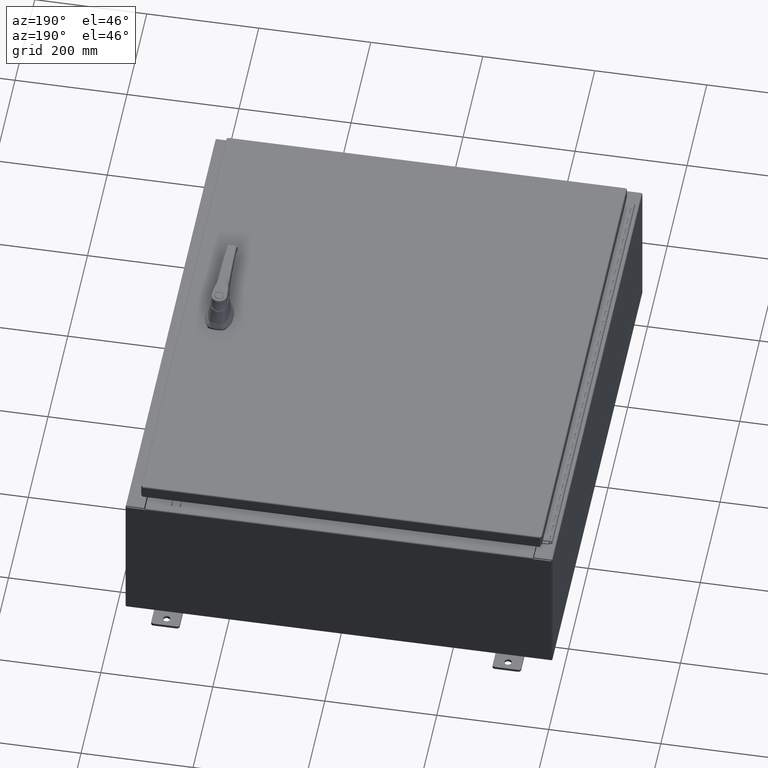
[diagram: clean part render]
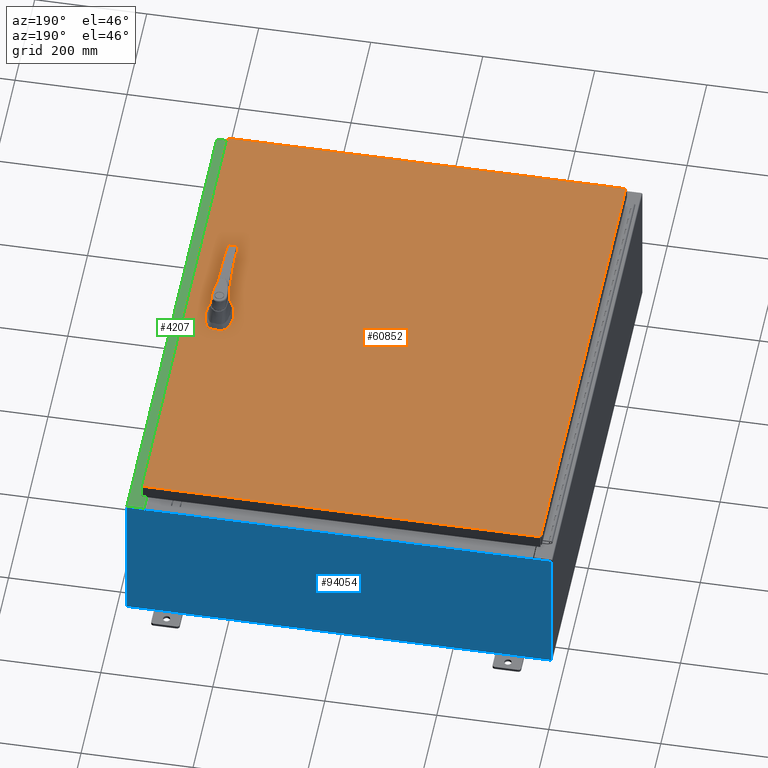
[diagram: same view with three faces highlighted in distinct colors, each labeled with its STEP entity id]
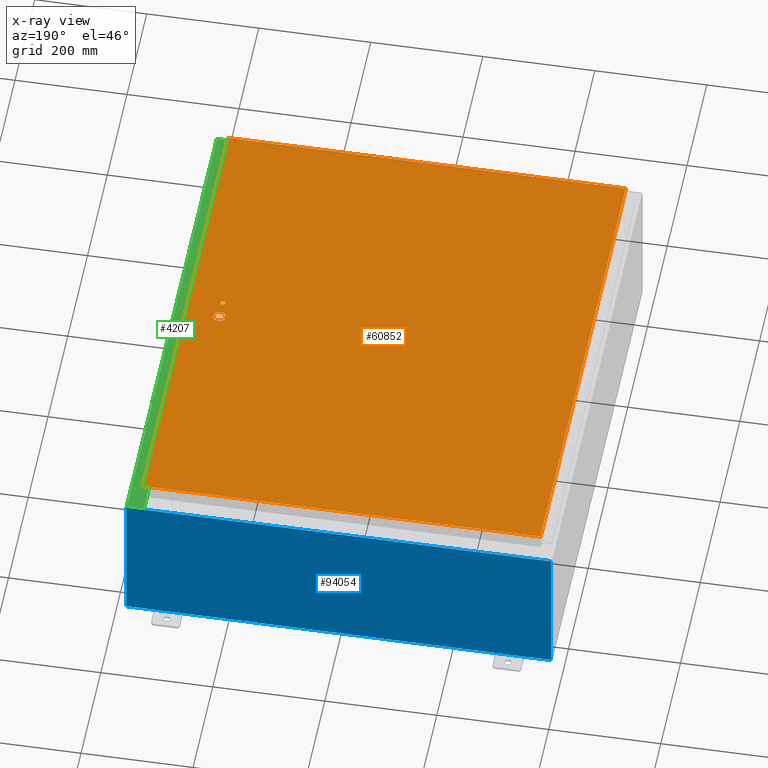
[diagram: x-ray of the same camera — body ghosted, the three highlighted faces saturated]
A machine part, auxiliary view with three faces highlighted in distinct colors.
The next image is the same camera in x-ray (body ghosted, the three faces saturated) — at least one of them is partly hidden behind the body in this view.
Their STEP definitions:

[orange] entity #60852 — the highlighted planar face has unit normal (0, 0, -1).
#1659 = CARTESIAN_POINT ( 'NONE',  ( 11.77822737075630300, 0.4029999999999252000, 0.0000000000000000000 ) ) ;
#1831 = LINE ( 'NONE', #97226, #99730 ) ;
#2115 = CARTESIAN_POINT ( 'NONE',  ( 11.98099999999992000, 6.538620706741751200E-014, 0.0000000000000000000 ) ) ;
#2897 = AXIS2_PLACEMENT_3D ( 'NONE', #7684, #74033, #17208 ) ;
#4254 = ORIENTED_EDGE ( 'NONE', *, *, #13377, .F. ) ;
#4736 = VECTOR ( 'NONE', #116334, 39.37007874015748100 ) ;
#4948 = ORIENTED_EDGE ( 'NONE', *, *, #79596, .F. ) ;
#6911 = VERTEX_POINT ( 'NONE', #33044 ) ;
#7251 = VERTEX_POINT ( 'NONE', #1659 ) ;
#7684 = CARTESIAN_POINT ( 'NONE',  ( 11.57799999999999400, 0.0000000000000000000, 0.0000000000000000000 ) ) ;
#8814 = CIRCLE ( 'NONE', #70711, 0.4499999999999168000 ) ;
#13377 = EDGE_CURVE ( 'NONE', #34958, #20985, #50812, .T. ) ;
#13726 = EDGE_CURVE ( 'NONE', #80247, #92435, #1831, .T. ) ;
#13754 = EDGE_CURVE ( 'NONE', #48320, #77873, #77489, .T. ) ;
#14861 = CARTESIAN_POINT ( 'NONE',  ( 11.77822737075630300, -0.4029999999999252000, 0.0000000000000000000 ) ) ;
#17208 = DIRECTION ( 'NONE',  ( 1.000000000000000000, 0.0000000000000000000, 0.0000000000000000000 ) ) ;
#18678 = VERTEX_POINT ( 'NONE', #86103 ) ;
#18828 = AXIS2_PLACEMENT_3D ( 'NONE', #101879, #44988, #111429 ) ;
#19608 = CARTESIAN_POINT ( 'NONE',  ( 13.99029999999999200, -17.00630000000000000, -2.048885995248197400E-016 ) ) ;
#19678 = EDGE_CURVE ( 'NONE', #69308, #7251, #55681, .T. ) ;
#20245 = DIRECTION ( 'NONE',  ( 1.000000000000000000, 0.0000000000000000000, 0.0000000000000000000 ) ) ;
#20985 = VERTEX_POINT ( 'NONE', #14861 ) ;
#21517 = ORIENTED_EDGE ( 'NONE', *, *, #32371, .F. ) ;
#22620 = VECTOR ( 'NONE', #20245, 39.37007874015748100 ) ;
#24495 = CIRCLE ( 'NONE', #118045, 0.1715000000000011500 ) ;
#26691 = VECTOR ( 'NONE', #58912, 39.37007874015748100 ) ;
#26692 = ORIENTED_EDGE ( 'NONE', *, *, #57905, .T. ) ;
#27304 = CARTESIAN_POINT ( 'NONE',  ( 11.40649999999999200, -1.338000000000000100, 0.0000000000000000000 ) ) ;
#28423 = CARTESIAN_POINT ( 'NONE',  ( 11.57799999999999400, 0.0000000000000000000, 0.0000000000000000000 ) ) ;
#28517 = DIRECTION ( 'NONE',  ( 0.0000000000000000000, -1.000000000000000000, 0.0000000000000000000 ) ) ;
#28536 = LINE ( 'NONE', #72655, #70058 ) ;
#28896 = EDGE_LOOP ( 'NONE', ( #96747, #83966 ) ) ;
#29458 = CARTESIAN_POINT ( 'NONE',  ( 11.74949999999999400, -1.338000000000000100, 0.0000000000000000000 ) ) ;
#29605 = ORIENTED_EDGE ( 'NONE', *, *, #13726, .T. ) ;
#31665 = VECTOR ( 'NONE', #47254, 39.37007874015748100 ) ;
#32371 = EDGE_CURVE ( 'NONE', #48464, #6911, #91684, .T. ) ;
#33044 = CARTESIAN_POINT ( 'NONE',  ( 11.17500000000006600, 0.2002273707563079800, 0.0000000000000000000 ) ) ;
#34209 = DIRECTION ( 'NONE',  ( -0.0000000000000000000, 0.0000000000000000000, 1.000000000000000000 ) ) ;
#34958 = VERTEX_POINT ( 'NONE', #50941 ) ;
#35425 = DIRECTION ( 'NONE',  ( -0.0000000000000000000, 0.0000000000000000000, 1.000000000000000000 ) ) ;
#37084 = EDGE_CURVE ( 'NONE', #58471, #34958, #120786, .T. ) ;
#37932 = DIRECTION ( 'NONE',  ( 1.000000000000000000, 0.0000000000000000000, 0.0000000000000000000 ) ) ;
#40339 = DIRECTION ( 'NONE',  ( 0.0000000000000000000, -1.000000000000000000, 0.0000000000000000000 ) ) ;
#41719 = VECTOR ( 'NONE', #28517, 39.37007874015748100 ) ;
#42137 = ORIENTED_EDGE ( 'NONE', *, *, #70620, .T. ) ;
#43017 = CARTESIAN_POINT ( 'NONE',  ( 11.17500000000006600, -0.2002273707563079800, 0.0000000000000000000 ) ) ;
#43195 = EDGE_LOOP ( 'NONE', ( #26692, #105018, #83773, #29605 ) ) ;
#43601 = DIRECTION ( 'NONE',  ( -0.0000000000000000000, 0.0000000000000000000, 1.000000000000000000 ) ) ;
#43673 = PLANE ( 'NONE',  #61506 ) ;
#44988 = DIRECTION ( 'NONE',  ( -0.0000000000000000000, 0.0000000000000000000, 1.000000000000000000 ) ) ;
#47254 = DIRECTION ( 'NONE',  ( -1.000000000000000000, 0.0000000000000000000, 0.0000000000000000000 ) ) ;
#48065 = ORIENTED_EDGE ( 'NONE', *, *, #100450, .F. ) ;
#48310 = CARTESIAN_POINT ( 'NONE',  ( 13.99029999999999200, 17.00630000000000300, -1.297627796990525000E-015 ) ) ;
#48320 = VERTEX_POINT ( 'NONE', #19608 ) ;
#48464 = VERTEX_POINT ( 'NONE', #80051 ) ;
#48937 = LINE ( 'NONE', #2115, #26691 ) ;
#49909 = CARTESIAN_POINT ( 'NONE',  ( 13.99029999999999200, -17.00630000000000000, -2.048885995248197400E-016 ) ) ;
#49918 = EDGE_CURVE ( 'NONE', #77873, #80247, #81159, .T. ) ;
#50812 = LINE ( 'NONE', #57998, #22620 ) ;
#50941 = CARTESIAN_POINT ( 'NONE',  ( 11.37777262924368300, -0.4029999999999252000, 0.0000000000000000000 ) ) ;
#53237 = DIRECTION ( 'NONE',  ( -1.000000000000000000, 0.0000000000000000000, -0.0000000000000000000 ) ) ;
#55681 = CIRCLE ( 'NONE', #18828, 0.4499999999999168000 ) ;
#57905 = EDGE_CURVE ( 'NONE', #92435, #48320, #28536, .T. ) ;
#57998 = CARTESIAN_POINT ( 'NONE',  ( 0.0000000000000000000, -0.4029999999999252000, 0.0000000000000000000 ) ) ;
#58471 = VERTEX_POINT ( 'NONE', #43017 ) ;
#58912 = DIRECTION ( 'NONE',  ( 5.457491617345625800E-015, -1.000000000000000000, 0.0000000000000000000 ) ) ;
#60852 = ADVANCED_FACE ( 'NONE', ( #78516, #103792, #106774 ), #43673, .F. ) ;
#61506 = AXIS2_PLACEMENT_3D ( 'NONE', #71908, #110097, #53237 ) ;
#64657 = CARTESIAN_POINT ( 'NONE',  ( 11.98099999999992000, 0.2002273707563075900, 0.0000000000000000000 ) ) ;
#65431 = ORIENTED_EDGE ( 'NONE', *, *, #19678, .F. ) ;
#67046 = LINE ( 'NONE', #75781, #41719 ) ;
#69308 = VERTEX_POINT ( 'NONE', #64657 ) ;
#70058 = VECTOR ( 'NONE', #82159, 39.37007874015748100 ) ;
#70620 = EDGE_CURVE ( 'NONE', #69308, #18678, #48937, .T. ) ;
#70711 = AXIS2_PLACEMENT_3D ( 'NONE', #92299, #35425, #101839 ) ;
#71572 = EDGE_LOOP ( 'NONE', ( #42137, #48065, #4254, #116717, #4948, #21517, #111625, #65431 ) ) ;
#71908 = CARTESIAN_POINT ( 'NONE',  ( 0.0000000000000000000, 0.0000000000000000000, 0.0000000000000000000 ) ) ;
#72655 = CARTESIAN_POINT ( 'NONE',  ( -13.99030000000000700, -17.00630000000000000, -2.048885995248197400E-016 ) ) ;
#74033 = DIRECTION ( 'NONE',  ( -0.0000000000000000000, 0.0000000000000000000, 1.000000000000000000 ) ) ;
#75781 = CARTESIAN_POINT ( 'NONE',  ( 11.17500000000006600, 0.0000000000000000000, 0.0000000000000000000 ) ) ;
#75884 = EDGE_CURVE ( 'NONE', #83416, #97343, #24495, .T. ) ;
#77489 = LINE ( 'NONE', #49909, #4736 ) ;
#77873 = VERTEX_POINT ( 'NONE', #48310 ) ;
#78516 = FACE_BOUND ( 'NONE', #28896, .T. ) ;
#79596 = EDGE_CURVE ( 'NONE', #6911, #58471, #67046, .T. ) ;
#80051 = CARTESIAN_POINT ( 'NONE',  ( 11.37777262924368300, 0.4029999999999252000, 0.0000000000000000000 ) ) ;
#80247 = VERTEX_POINT ( 'NONE', #95986 ) ;
#81159 = LINE ( 'NONE', #83829, #84165 ) ;
#82159 = DIRECTION ( 'NONE',  ( 1.000000000000000000, -0.0000000000000000000, -0.0000000000000000000 ) ) ;
#83416 = VERTEX_POINT ( 'NONE', #27304 ) ;
#83773 = ORIENTED_EDGE ( 'NONE', *, *, #49918, .T. ) ;
#83829 = CARTESIAN_POINT ( 'NONE',  ( 13.99029999999999200, 17.00630000000000300, -1.297627796990525000E-015 ) ) ;
#83966 = ORIENTED_EDGE ( 'NONE', *, *, #75884, .F. ) ;
#84165 = VECTOR ( 'NONE', #93412, 39.37007874015748100 ) ;
#86103 = CARTESIAN_POINT ( 'NONE',  ( 11.98099999999992200, -0.2002273707563079800, 0.0000000000000000000 ) ) ;
#87640 = EDGE_CURVE ( 'NONE', #7251, #48464, #101427, .T. ) ;
#91081 = CARTESIAN_POINT ( 'NONE',  ( 11.57799999999999400, -1.338000000000000100, 0.0000000000000000000 ) ) ;
#91684 = CIRCLE ( 'NONE', #2897, 0.4499999999999168000 ) ;
#92299 = CARTESIAN_POINT ( 'NONE',  ( 11.57799999999999400, 0.0000000000000000000, 0.0000000000000000000 ) ) ;
#92435 = VERTEX_POINT ( 'NONE', #103695 ) ;
#93412 = DIRECTION ( 'NONE',  ( -1.000000000000000000, -0.0000000000000000000, -0.0000000000000000000 ) ) ;
#94402 = AXIS2_PLACEMENT_3D ( 'NONE', #28423, #94808, #37932 ) ;
#94808 = DIRECTION ( 'NONE',  ( -0.0000000000000000000, 0.0000000000000000000, 1.000000000000000000 ) ) ;
#95986 = CARTESIAN_POINT ( 'NONE',  ( -13.99030000000000700, 17.00630000000000000, -2.048885995248197400E-016 ) ) ;
#96747 = ORIENTED_EDGE ( 'NONE', *, *, #112225, .F. ) ;
#97226 = CARTESIAN_POINT ( 'NONE',  ( -13.99030000000000700, 17.00630000000000000, -2.048885995248197400E-016 ) ) ;
#97343 = VERTEX_POINT ( 'NONE', #29458 ) ;
#99730 = VECTOR ( 'NONE', #40339, 39.37007874015748100 ) ;
#100450 = EDGE_CURVE ( 'NONE', #20985, #18678, #8814, .T. ) ;
#100489 = CARTESIAN_POINT ( 'NONE',  ( 11.57799999999999400, -1.338000000000000100, 0.0000000000000000000 ) ) ;
#100643 = DIRECTION ( 'NONE',  ( 1.000000000000000000, 0.0000000000000000000, 0.0000000000000000000 ) ) ;
#101427 = LINE ( 'NONE', #104142, #31665 ) ;
#101839 = DIRECTION ( 'NONE',  ( 1.000000000000000000, 0.0000000000000000000, 0.0000000000000000000 ) ) ;
#101879 = CARTESIAN_POINT ( 'NONE',  ( 11.57799999999999400, 0.0000000000000000000, 0.0000000000000000000 ) ) ;
#102338 = AXIS2_PLACEMENT_3D ( 'NONE', #91081, #34209, #100643 ) ;
#103695 = CARTESIAN_POINT ( 'NONE',  ( -13.99030000000000700, -17.00630000000000000, -2.048885995248197400E-016 ) ) ;
#103792 = FACE_OUTER_BOUND ( 'NONE', #43195, .T. ) ;
#104142 = CARTESIAN_POINT ( 'NONE',  ( 0.0000000000000000000, 0.4029999999999252000, 0.0000000000000000000 ) ) ;
#105018 = ORIENTED_EDGE ( 'NONE', *, *, #13754, .T. ) ;
#106774 = FACE_BOUND ( 'NONE', #71572, .T. ) ;
#110039 = DIRECTION ( 'NONE',  ( 1.000000000000000000, 0.0000000000000000000, 0.0000000000000000000 ) ) ;
#110097 = DIRECTION ( 'NONE',  ( 0.0000000000000000000, 0.0000000000000000000, -1.000000000000000000 ) ) ;
#111429 = DIRECTION ( 'NONE',  ( 1.000000000000000000, 0.0000000000000000000, 0.0000000000000000000 ) ) ;
#111625 = ORIENTED_EDGE ( 'NONE', *, *, #87640, .F. ) ;
#112225 = EDGE_CURVE ( 'NONE', #97343, #83416, #114275, .T. ) ;
#114275 = CIRCLE ( 'NONE', #102338, 0.1715000000000011500 ) ;
#116334 = DIRECTION ( 'NONE',  ( 0.0000000000000000000, 1.000000000000000000, 0.0000000000000000000 ) ) ;
#116717 = ORIENTED_EDGE ( 'NONE', *, *, #37084, .F. ) ;
#118045 = AXIS2_PLACEMENT_3D ( 'NONE', #100489, #43601, #110039 ) ;
#120786 = CIRCLE ( 'NONE', #94402, 0.4499999999999168000 ) ;

[blue] entity #94054 — the highlighted planar face has unit normal (0, -1, 0).
#1230 = LINE ( 'NONE', #83989, #23418 ) ;
#4386 = AXIS2_PLACEMENT_3D ( 'NONE', #56059, #122479, #65630 ) ;
#6017 = VERTEX_POINT ( 'NONE', #39039 ) ;
#6091 = ORIENTED_EDGE ( 'NONE', *, *, #99513, .T. ) ;
#7769 = EDGE_CURVE ( 'NONE', #6017, #55393, #1230, .T. ) ;
#8002 = CARTESIAN_POINT ( 'NONE',  ( 14.92529999999999800, 0.0000000000000000000, 4.925300000000000000 ) ) ;
#10573 = CARTESIAN_POINT ( 'NONE',  ( 0.0000000000000000000, 0.0000000000000000000, 0.0000000000000000000 ) ) ;
#10584 = VERTEX_POINT ( 'NONE', #107399 ) ;
#12391 = EDGE_CURVE ( 'NONE', #14372, #118832, #65841, .T. ) ;
#13902 = LINE ( 'NONE', #94990, #67390 ) ;
#14372 = VERTEX_POINT ( 'NONE', #57704 ) ;
#15589 = DIRECTION ( 'NONE',  ( -0.0000000000000000000, 1.000000000000000000, -0.0000000000000000000 ) ) ;
#18573 = DIRECTION ( 'NONE',  ( 1.000000000000000000, 0.0000000000000000000, 0.0000000000000000000 ) ) ;
#18867 = VECTOR ( 'NONE', #60109, 39.37007874015748100 ) ;
#23398 = VERTEX_POINT ( 'NONE', #42910 ) ;
#23418 = VECTOR ( 'NONE', #27200, 39.37007874015748100 ) ;
#23959 = VERTEX_POINT ( 'NONE', #77302 ) ;
#24947 = VERTEX_POINT ( 'NONE', #64463 ) ;
#27200 = DIRECTION ( 'NONE',  ( -4.340572780400004900E-014, 0.0000000000000000000, -1.000000000000000000 ) ) ;
#27208 = VERTEX_POINT ( 'NONE', #111118 ) ;
#27393 = EDGE_CURVE ( 'NONE', #6017, #56621, #65009, .T. ) ;
#27506 = CARTESIAN_POINT ( 'NONE',  ( 13.63719999999999800, 0.0000000000000000000, 0.0000000000000000000 ) ) ;
#28209 = VECTOR ( 'NONE', #120796, 39.37007874015748100 ) ;
#29642 = PLANE ( 'NONE',  #98146 ) ;
#33008 = DIRECTION ( 'NONE',  ( 1.000000000000000000, 0.0000000000000000000, 0.0000000000000000000 ) ) ;
#34091 = LINE ( 'NONE', #54362, #28209 ) ;
#37582 = VECTOR ( 'NONE', #99861, 39.37007874015748100 ) ;
#37830 = EDGE_CURVE ( 'NONE', #56621, #121084, #104342, .T. ) ;
#37916 = EDGE_CURVE ( 'NONE', #24947, #23398, #98369, .T. ) ;
#37946 = ORIENTED_EDGE ( 'NONE', *, *, #64995, .F. ) ;
#39039 = CARTESIAN_POINT ( 'NONE',  ( 13.67455000000000000, 0.0000000000000000000, 4.925300000000000000 ) ) ;
#39145 = DIRECTION ( 'NONE',  ( 0.0000000000000000000, -1.000000000000000000, 0.0000000000000000000 ) ) ;
#42459 = VECTOR ( 'NONE', #122548, 39.37007874015748100 ) ;
#42910 = CARTESIAN_POINT ( 'NONE',  ( -13.63720000000000000, -0.0000000000000000000, 4.874950000000000100 ) ) ;
#44148 = ORIENTED_EDGE ( 'NONE', *, *, #12391, .T. ) ;
#45453 = LINE ( 'NONE', #27506, #42459 ) ;
#46599 = VECTOR ( 'NONE', #33008, 39.37007874015748100 ) ;
#48604 = ORIENTED_EDGE ( 'NONE', *, *, #73967, .T. ) ;
#50629 = EDGE_CURVE ( 'NONE', #27208, #81248, #45453, .T. ) ;
#54362 = CARTESIAN_POINT ( 'NONE',  ( -13.63720000000000400, -7.171100983368691200E-016, 4.912300000000000100 ) ) ;
#55393 = VERTEX_POINT ( 'NONE', #86974 ) ;
#56059 = CARTESIAN_POINT ( 'NONE',  ( -13.65587500000000000, 0.0000000000000000000, 4.874950000000000100 ) ) ;
#56501 = ORIENTED_EDGE ( 'NONE', *, *, #88465, .F. ) ;
#56621 = VERTEX_POINT ( 'NONE', #107833 ) ;
#56844 = VECTOR ( 'NONE', #64010, 39.37007874015748100 ) ;
#57704 = CARTESIAN_POINT ( 'NONE',  ( -14.92530000000000200, 0.0000000000000000000, -4.925300000000000000 ) ) ;
#60109 = DIRECTION ( 'NONE',  ( -1.000000000000000000, -0.0000000000000000000, -0.0000000000000000000 ) ) ;
#62006 = VECTOR ( 'NONE', #18573, 39.37007874015748100 ) ;
#62126 = CARTESIAN_POINT ( 'NONE',  ( -14.92530000000000200, 0.0000000000000000000, 4.925300000000000000 ) ) ;
#62538 = EDGE_LOOP ( 'NONE', ( #37946, #95619, #98154, #6091, #63596, #56501, #73625, #115953, #71227, #48604, #44148, #98832 ) ) ;
#63596 = ORIENTED_EDGE ( 'NONE', *, *, #50629, .F. ) ;
#64010 = DIRECTION ( 'NONE',  ( 0.0000000000000000000, 0.0000000000000000000, -1.000000000000000000 ) ) ;
#64463 = CARTESIAN_POINT ( 'NONE',  ( -13.63720000000000000, -7.171100983368691200E-016, 4.912300000000000100 ) ) ;
#64995 = EDGE_CURVE ( 'NONE', #23959, #10584, #13902, .T. ) ;
#65009 = LINE ( 'NONE', #113189, #62006 ) ;
#65630 = DIRECTION ( 'NONE',  ( 0.0000000000000000000, 0.0000000000000000000, -1.000000000000000000 ) ) ;
#65841 = LINE ( 'NONE', #62126, #37582 ) ;
#66080 = DIRECTION ( 'NONE',  ( 0.0000000000000000000, 0.0000000000000000000, -1.000000000000000000 ) ) ;
#66780 = DIRECTION ( 'NONE',  ( 0.0000000000000000000, 0.0000000000000000000, 1.000000000000000000 ) ) ;
#67390 = VECTOR ( 'NONE', #66780, 39.37007874015748100 ) ;
#70142 = VECTOR ( 'NONE', #66080, 39.37007874015748100 ) ;
#71227 = ORIENTED_EDGE ( 'NONE', *, *, #37830, .T. ) ;
#72425 = CARTESIAN_POINT ( 'NONE',  ( 13.65587499999999800, 0.0000000000000000000, 4.874950000000000100 ) ) ;
#73625 = ORIENTED_EDGE ( 'NONE', *, *, #7769, .F. ) ;
#73967 = EDGE_CURVE ( 'NONE', #121084, #14372, #119817, .T. ) ;
#76614 = EDGE_CURVE ( 'NONE', #118832, #10584, #119414, .T. ) ;
#77302 = CARTESIAN_POINT ( 'NONE',  ( -13.67455000000000000, 0.0000000000000000000, 4.874950000000000100 ) ) ;
#81248 = VERTEX_POINT ( 'NONE', #119408 ) ;
#81926 = DIRECTION ( 'NONE',  ( 0.0000000000000000000, 0.0000000000000000000, -1.000000000000000000 ) ) ;
#82348 = CARTESIAN_POINT ( 'NONE',  ( -14.92530000000000200, 0.0000000000000000000, 4.925300000000000000 ) ) ;
#83701 = CARTESIAN_POINT ( 'NONE',  ( -14.92530000000000200, 0.0000000000000000000, 4.925300000000000000 ) ) ;
#83989 = CARTESIAN_POINT ( 'NONE',  ( 13.67454999999978500, -0.0000000000000000000, -5.935537951421795000E-013 ) ) ;
#86974 = CARTESIAN_POINT ( 'NONE',  ( 13.67454999999999800, 0.0000000000000000000, 4.874950000000000100 ) ) ;
#88465 = EDGE_CURVE ( 'NONE', #55393, #27208, #103015, .T. ) ;
#91702 = CIRCLE ( 'NONE', #4386, 0.01867499999999949400 ) ;
#94054 = ADVANCED_FACE ( 'NONE', ( #111123 ), #29642, .F. ) ;
#94783 = EDGE_CURVE ( 'NONE', #23398, #23959, #91702, .T. ) ;
#94990 = CARTESIAN_POINT ( 'NONE',  ( -13.67455000000000000, -0.0000000000000000000, 0.0000000000000000000 ) ) ;
#95619 = ORIENTED_EDGE ( 'NONE', *, *, #94783, .F. ) ;
#97100 = AXIS2_PLACEMENT_3D ( 'NONE', #72425, #15589, #81926 ) ;
#98146 = AXIS2_PLACEMENT_3D ( 'NONE', #10573, #39145, #105580 ) ;
#98154 = ORIENTED_EDGE ( 'NONE', *, *, #37916, .F. ) ;
#98369 = LINE ( 'NONE', #113389, #70142 ) ;
#98832 = ORIENTED_EDGE ( 'NONE', *, *, #76614, .T. ) ;
#99513 = EDGE_CURVE ( 'NONE', #24947, #81248, #34091, .T. ) ;
#99861 = DIRECTION ( 'NONE',  ( -0.0000000000000000000, -0.0000000000000000000, 1.000000000000000000 ) ) ;
#101415 = CARTESIAN_POINT ( 'NONE',  ( 14.92529999999999800, 0.0000000000000000000, -4.925300000000000000 ) ) ;
#103015 = CIRCLE ( 'NONE', #97100, 0.01867499999999949400 ) ;
#104342 = LINE ( 'NONE', #8002, #56844 ) ;
#105580 = DIRECTION ( 'NONE',  ( 0.0000000000000000000, -0.0000000000000000000, -1.000000000000000000 ) ) ;
#107399 = CARTESIAN_POINT ( 'NONE',  ( -13.67455000000000000, 0.0000000000000000000, 4.925300000000000000 ) ) ;
#107833 = CARTESIAN_POINT ( 'NONE',  ( 14.92529999999999800, 0.0000000000000000000, 4.925300000000000000 ) ) ;
#111118 = CARTESIAN_POINT ( 'NONE',  ( 13.63719999999999800, 0.0000000000000000000, 4.874950000000000100 ) ) ;
#111123 = FACE_OUTER_BOUND ( 'NONE', #62538, .T. ) ;
#113189 = CARTESIAN_POINT ( 'NONE',  ( -14.92530000000000200, 0.0000000000000000000, 4.925300000000000000 ) ) ;
#113389 = CARTESIAN_POINT ( 'NONE',  ( -13.63720000000000000, -0.0000000000000000000, 0.0000000000000000000 ) ) ;
#115953 = ORIENTED_EDGE ( 'NONE', *, *, #27393, .T. ) ;
#116959 = CARTESIAN_POINT ( 'NONE',  ( -14.92530000000000200, 0.0000000000000000000, -4.925300000000000000 ) ) ;
#118832 = VERTEX_POINT ( 'NONE', #83701 ) ;
#119408 = CARTESIAN_POINT ( 'NONE',  ( 13.63719999999999800, 0.0000000000000000000, 4.912300000000000100 ) ) ;
#119414 = LINE ( 'NONE', #82348, #46599 ) ;
#119817 = LINE ( 'NONE', #116959, #18867 ) ;
#120796 = DIRECTION ( 'NONE',  ( 1.000000000000000000, 0.0000000000000000000, 0.0000000000000000000 ) ) ;
#121084 = VERTEX_POINT ( 'NONE', #101415 ) ;
#122479 = DIRECTION ( 'NONE',  ( -0.0000000000000000000, 1.000000000000000000, -0.0000000000000000000 ) ) ;
#122548 = DIRECTION ( 'NONE',  ( 0.0000000000000000000, 0.0000000000000000000, 1.000000000000000000 ) ) ;

[green] entity #4207 — the highlighted planar face has unit normal (-0, 0, -1).
#984 = DIRECTION ( 'NONE',  ( 5.349571789159788500E-015, 0.0000000000000000000, 1.000000000000000000 ) ) ;
#1303 = DIRECTION ( 'NONE',  ( 1.000000000000000000, 0.0000000000000000000, 0.0000000000000000000 ) ) ;
#4207 = ADVANCED_FACE ( 'NONE', ( #114601 ), #53063, .F. ) ;
#4522 = DIRECTION ( 'NONE',  ( 1.000000000000000000, 0.0000000000000000000, 0.0000000000000000000 ) ) ;
#4685 = EDGE_CURVE ( 'NONE', #99463, #80638, #81764, .T. ) ;
#5809 = DIRECTION ( 'NONE',  ( -5.349571789159788500E-015, 0.0000000000000000000, -1.000000000000000000 ) ) ;
#7409 = LINE ( 'NONE', #58104, #102404 ) ;
#7970 = CARTESIAN_POINT ( 'NONE',  ( 13.71270000000003700, 16.59375000000000000, 9.925300000000008900 ) ) ;
#8857 = VECTOR ( 'NONE', #30951, 39.37007874015748100 ) ;
#9521 = CARTESIAN_POINT ( 'NONE',  ( 13.69970000000003400, -16.63110000000000000, 9.925300000000008900 ) ) ;
#9566 = LINE ( 'NONE', #109719, #57061 ) ;
#10737 = VECTOR ( 'NONE', #48658, 39.37007874015748100 ) ;
#10752 = VERTEX_POINT ( 'NONE', #51720 ) ;
#11875 = CARTESIAN_POINT ( 'NONE',  ( 13.69970000000003400, -5.858168245728892200E-030, 9.925300000000008900 ) ) ;
#13569 = ORIENTED_EDGE ( 'NONE', *, *, #94363, .F. ) ;
#13632 = EDGE_CURVE ( 'NONE', #89438, #98015, #64166, .T. ) ;
#14315 = LINE ( 'NONE', #83922, #61860 ) ;
#15569 = ORIENTED_EDGE ( 'NONE', *, *, #13632, .F. ) ;
#15657 = DIRECTION ( 'NONE',  ( -4.276128853718621600E-031, -1.000000000000000000, 2.287545828266532300E-045 ) ) ;
#17552 = LINE ( 'NONE', #108002, #90249 ) ;
#20908 = LINE ( 'NONE', #110263, #118865 ) ;
#20944 = ORIENTED_EDGE ( 'NONE', *, *, #107216, .T. ) ;
#21226 = DIRECTION ( 'NONE',  ( 5.349571789159788500E-015, 0.0000000000000000000, 1.000000000000000000 ) ) ;
#21433 = CARTESIAN_POINT ( 'NONE',  ( 14.91230000000003400, -17.92530000000000000, 9.925300000000001800 ) ) ;
#25164 = ORIENTED_EDGE ( 'NONE', *, *, #70943, .T. ) ;
#25198 = VERTEX_POINT ( 'NONE', #92097 ) ;
#27451 = CARTESIAN_POINT ( 'NONE',  ( 13.75005000000003500, -16.59375000000000000, 9.925300000000008900 ) ) ;
#30951 = DIRECTION ( 'NONE',  ( -0.0000000000000000000, -1.000000000000000000, -0.0000000000000000000 ) ) ;
#32113 = ORIENTED_EDGE ( 'NONE', *, *, #70591, .F. ) ;
#34431 = EDGE_CURVE ( 'NONE', #42179, #99463, #73582, .T. ) ;
#36593 = DIRECTION ( 'NONE',  ( -1.000000000000000000, 0.0000000000000000000, 0.0000000000000000000 ) ) ;
#37032 = LINE ( 'NONE', #21433, #8857 ) ;
#42179 = VERTEX_POINT ( 'NONE', #58948 ) ;
#45752 = EDGE_LOOP ( 'NONE', ( #109473, #51184, #53144, #50998, #20944, #25164, #72532, #100627, #32113, #13569, #15569, #90887 ) ) ;
#46182 = EDGE_CURVE ( 'NONE', #117178, #80446, #20908, .T. ) ;
#47004 = CARTESIAN_POINT ( 'NONE',  ( 13.69970000000003400, 17.92530000000000000, 9.925300000000008900 ) ) ;
#48610 = LINE ( 'NONE', #89544, #70847 ) ;
#48658 = DIRECTION ( 'NONE',  ( -1.000000000000000000, 0.0000000000000000000, 0.0000000000000000000 ) ) ;
#50998 = ORIENTED_EDGE ( 'NONE', *, *, #70975, .F. ) ;
#51184 = ORIENTED_EDGE ( 'NONE', *, *, #46182, .T. ) ;
#51720 = CARTESIAN_POINT ( 'NONE',  ( 13.75005000000003500, -16.63110000000000000, 9.925300000000008900 ) ) ;
#53063 = PLANE ( 'NONE',  #100563 ) ;
#53144 = ORIENTED_EDGE ( 'NONE', *, *, #115167, .T. ) ;
#55818 = AXIS2_PLACEMENT_3D ( 'NONE', #78008, #21226, #87561 ) ;
#57061 = VECTOR ( 'NONE', #62019, 39.37007874015748100 ) ;
#57785 = CARTESIAN_POINT ( 'NONE',  ( 13.75005000000003500, 16.61242500000000200, 9.925300000000008900 ) ) ;
#58104 = CARTESIAN_POINT ( 'NONE',  ( 13.71270000000003700, 16.59375000000000000, 9.925300000000008900 ) ) ;
#58948 = CARTESIAN_POINT ( 'NONE',  ( 13.75005000000003500, 16.59375000000000000, 9.925300000000008900 ) ) ;
#61860 = VECTOR ( 'NONE', #102645, 39.37007874015748100 ) ;
#62019 = DIRECTION ( 'NONE',  ( -1.000000000000000000, 4.861730685829018000E-063, 5.349571789159789300E-015 ) ) ;
#64166 = LINE ( 'NONE', #105570, #10737 ) ;
#67322 = DIRECTION ( 'NONE',  ( 1.000000000000000000, 0.0000000000000000000, 0.0000000000000000000 ) ) ;
#68282 = CARTESIAN_POINT ( 'NONE',  ( 13.71270000000003700, -16.59375000000000000, 9.925300000000008900 ) ) ;
#70591 = EDGE_CURVE ( 'NONE', #113203, #42179, #7409, .T. ) ;
#70847 = VECTOR ( 'NONE', #4522, 39.37007874015748100 ) ;
#70943 = EDGE_CURVE ( 'NONE', #82077, #80638, #84514, .T. ) ;
#70975 = EDGE_CURVE ( 'NONE', #25198, #94360, #37032, .T. ) ;
#72152 = DIRECTION ( 'NONE',  ( -1.000000000000000000, 0.0000000000000000000, 5.349571789159788500E-015 ) ) ;
#72532 = ORIENTED_EDGE ( 'NONE', *, *, #4685, .F. ) ;
#72639 = CARTESIAN_POINT ( 'NONE',  ( 13.75005000000003500, 16.63110000000000000, 9.925300000000008900 ) ) ;
#73582 = CIRCLE ( 'NONE', #108571, 0.01867499999999949400 ) ;
#78008 = CARTESIAN_POINT ( 'NONE',  ( 13.75005000000003500, -16.61242500000000200, 9.925300000000008900 ) ) ;
#78837 = VECTOR ( 'NONE', #36593, 39.37007874015748100 ) ;
#80446 = VERTEX_POINT ( 'NONE', #88870 ) ;
#80638 = VERTEX_POINT ( 'NONE', #112478 ) ;
#81764 = LINE ( 'NONE', #103013, #78837 ) ;
#82077 = VERTEX_POINT ( 'NONE', #47004 ) ;
#83922 = CARTESIAN_POINT ( 'NONE',  ( 5.335691853495967900E-014, -17.92530000000000000, 9.925300000000083500 ) ) ;
#84514 = LINE ( 'NONE', #11875, #112795 ) ;
#87561 = DIRECTION ( 'NONE',  ( 1.000000000000000000, 0.0000000000000000000, 0.0000000000000000000 ) ) ;
#88870 = CARTESIAN_POINT ( 'NONE',  ( 13.69970000000003400, -17.92530000000000000, 9.925300000000008900 ) ) ;
#89438 = VERTEX_POINT ( 'NONE', #27451 ) ;
#89544 = CARTESIAN_POINT ( 'NONE',  ( 13.69970000000003400, -16.63110000000000000, 9.925300000000008900 ) ) ;
#89622 = EDGE_CURVE ( 'NONE', #10752, #89438, #104331, .T. ) ;
#90249 = VECTOR ( 'NONE', #117959, 39.37007874015748100 ) ;
#90829 = CARTESIAN_POINT ( 'NONE',  ( 5.335691853495967900E-014, 0.0000000000000000000, 9.925300000000083500 ) ) ;
#90887 = ORIENTED_EDGE ( 'NONE', *, *, #89622, .F. ) ;
#92097 = CARTESIAN_POINT ( 'NONE',  ( 14.91230000000003400, 17.92530000000000000, 9.925300000000001800 ) ) ;
#94360 = VERTEX_POINT ( 'NONE', #98845 ) ;
#94363 = EDGE_CURVE ( 'NONE', #98015, #113203, #17552, .T. ) ;
#98015 = VERTEX_POINT ( 'NONE', #68282 ) ;
#98845 = CARTESIAN_POINT ( 'NONE',  ( 14.91230000000003400, -17.92530000000000000, 9.925300000000001800 ) ) ;
#99463 = VERTEX_POINT ( 'NONE', #72639 ) ;
#100563 = AXIS2_PLACEMENT_3D ( 'NONE', #90829, #5809, #72152 ) ;
#100627 = ORIENTED_EDGE ( 'NONE', *, *, #34431, .F. ) ;
#102404 = VECTOR ( 'NONE', #1303, 39.37007874015748100 ) ;
#102645 = DIRECTION ( 'NONE',  ( 1.000000000000000000, 1.087045829762337300E-031, -5.349571789159789300E-015 ) ) ;
#103013 = CARTESIAN_POINT ( 'NONE',  ( 13.75005000000003500, 16.63110000000000000, 9.925300000000008900 ) ) ;
#104331 = CIRCLE ( 'NONE', #55818, 0.01867499999999949400 ) ;
#105570 = CARTESIAN_POINT ( 'NONE',  ( 13.75005000000003500, -16.59375000000000000, 9.925300000000008900 ) ) ;
#107216 = EDGE_CURVE ( 'NONE', #25198, #82077, #9566, .T. ) ;
#108002 = CARTESIAN_POINT ( 'NONE',  ( 13.71270000000003700, -16.59375000000000000, 9.925300000000008900 ) ) ;
#108571 = AXIS2_PLACEMENT_3D ( 'NONE', #57785, #984, #67322 ) ;
#109473 = ORIENTED_EDGE ( 'NONE', *, *, #114264, .F. ) ;
#109719 = CARTESIAN_POINT ( 'NONE',  ( 5.335691853495967900E-014, 17.92530000000000000, 9.925300000000083500 ) ) ;
#110263 = CARTESIAN_POINT ( 'NONE',  ( 13.69970000000003400, -5.858168245728892200E-030, 9.925300000000008900 ) ) ;
#112478 = CARTESIAN_POINT ( 'NONE',  ( 13.69970000000003400, 16.63110000000000000, 9.925300000000008900 ) ) ;
#112795 = VECTOR ( 'NONE', #116028, 39.37007874015748100 ) ;
#113203 = VERTEX_POINT ( 'NONE', #7970 ) ;
#114264 = EDGE_CURVE ( 'NONE', #117178, #10752, #48610, .T. ) ;
#114601 = FACE_OUTER_BOUND ( 'NONE', #45752, .T. ) ;
#115167 = EDGE_CURVE ( 'NONE', #80446, #94360, #14315, .T. ) ;
#116028 = DIRECTION ( 'NONE',  ( -4.276128853718621600E-031, -1.000000000000000000, 2.287545828266532300E-045 ) ) ;
#117178 = VERTEX_POINT ( 'NONE', #9521 ) ;
#117959 = DIRECTION ( 'NONE',  ( -0.0000000000000000000, 1.000000000000000000, -0.0000000000000000000 ) ) ;
#118865 = VECTOR ( 'NONE', #15657, 39.37007874015748100 ) ;